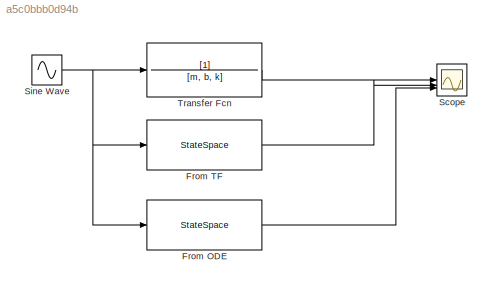
MODEL slx_a5c0bbb0d94b
KIND model
CONFIG AbsTol = auto
CONFIG EnableMultiTasking = off
CONFIG FixedStep = 1e-2
CONFIG MaxStep = auto
CONFIG MinStep = auto
CONFIG RelTol = 1e-3
CONFIG SampleTimeConstraint = Unconstrained
CONFIG SolverName = FixedStepAuto
CONFIG StartTime = 0.0
CONFIG StopTime = 10.0
BLOCK [StateSpace] From ODE
  A = A2
  B = B2
  C = C2
  D = D2
  InitialCondition = [x0, v0]
BLOCK [StateSpace] From TF
  A = A1
  B = B1
  C = C1
  D = D1
  InitialCondition = [v0,x0]
BLOCK [Scope] Scope
  Floating = off
  NumInputPorts = 3
  ScopeSpecificationString = Simulink.scopes.TimeScopeBlockCfg('CurrentConfiguration', extmgr.ConfigurationSet(extmgr.Configuration('Core','General UI',true),extmgr.Configuration('Core','Source UI',true),extmgr.Configuration('Sources','WiredSimulink',true),extmgr.Configuration('Visuals','Time Domain',true,'SerializedDisplays',{struct('MinYLimReal','-0.05196','MaxYLimReal','0.05272','YLabelReal','','MinYLimMag','0.00000','MaxY...<+3014ch>
BLOCK [Sin] Sine Wave
  Amplitude = F0
  Frequency = omega
  SampleTime = 0
BLOCK [TransferFcn] Transfer Fcn
  Denominator = [m, b, k]
LINE From ODE:1 -> Scope:3
LINE From TF:1 -> Scope:2
NET Sine Wave:1 -> From ODE:1, From TF:1, Transfer Fcn:1
LINE Transfer Fcn:1 -> Scope:1
note: NET lines group one-source signal fan-out (src -> all destinations, sorted); 1:1 wires keep LINE
